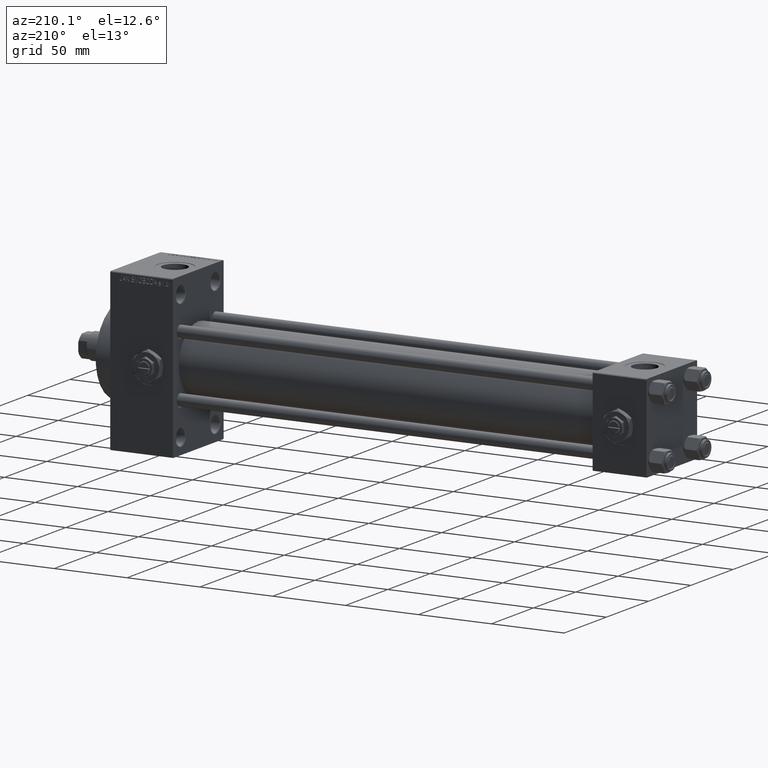
[diagram: clean part render]
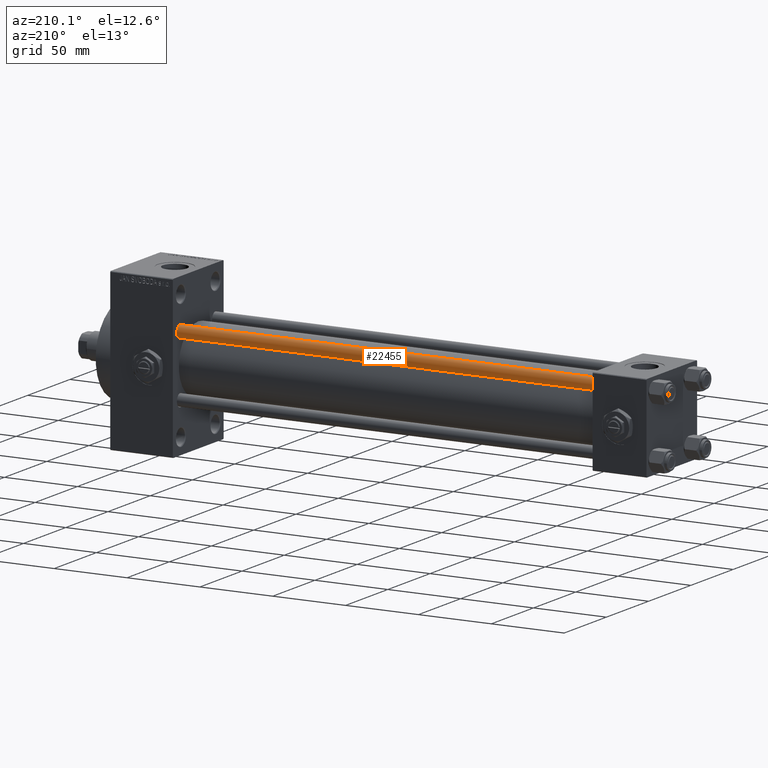
[diagram: same view with one face highlighted and labeled with its STEP entity id]
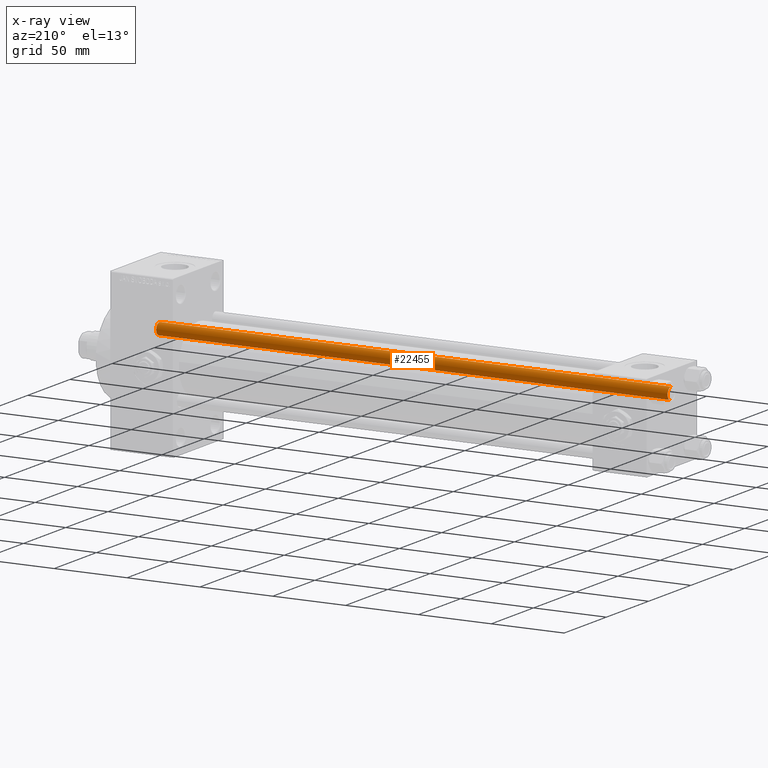
[diagram: x-ray of the same camera — body ghosted, the highlighted face saturated]
A machine part, auxiliary view. The second image highlights one B-rep face of the part: STEP entity #22455.
The next image is the same camera in x-ray: the body ghosted, the highlighted face saturated — about 0% of this face is hidden behind the body in this view.
In plain terms, the highlighted cylindrical surface (edge-blend (fillet) strip) has radius 4 mm, axis along (-1, -0, 0).
Its self-contained STEP definition (entity closure, byte-faithful):
#2598 = VECTOR ( 'NONE', #13902, 1000.000000000000000 ) ;
#2983 = DIRECTION ( 'NONE',  ( -0.000000000000000000, -0.000000000000000000, 1.000000000000000000 ) ) ;
#3470 = CARTESIAN_POINT ( 'NONE',  ( 0.000000000000000000, 0.000000000000000000, 0.5000000000000004441 ) ) ;
#4502 = CIRCLE ( 'NONE', #39553, 4.000000000000000000 ) ;
#4810 = VERTEX_POINT ( 'NONE', #9438 ) ;
#4861 = EDGE_LOOP ( 'NONE', ( #8481, #18904, #38086, #19226 ) ) ;
#6984 = AXIS2_PLACEMENT_3D ( 'NONE', #3470, #2983, #18669 ) ;
#7047 = CARTESIAN_POINT ( 'NONE',  ( 0.000000000000000000, 0.000000000000000000, 352.0000000000000000 ) ) ;
#7480 = AXIS2_PLACEMENT_3D ( 'NONE', #7047, #22246, #44690 ) ;
#8481 = ORIENTED_EDGE ( 'NONE', *, *, #43692, .T. ) ;
#9050 = CARTESIAN_POINT ( 'NONE',  ( -4.000000000000000000, 0.000000000000000000, 0.5000000000000004441 ) ) ;
#9438 = CARTESIAN_POINT ( 'NONE',  ( 4.000000000000000000, 4.898587196589412829E-16, 0.5000000000000004441 ) ) ;
#9679 = CARTESIAN_POINT ( 'NONE',  ( 4.000000000000000000, 4.898587196589412829E-16, 352.0000000000000000 ) ) ;
#9995 = VERTEX_POINT ( 'NONE', #9050 ) ;
#11849 = EDGE_CURVE ( 'NONE', #11954, #9995, #22533, .T. ) ;
#11954 = VERTEX_POINT ( 'NONE', #33778 ) ;
#13902 = DIRECTION ( 'NONE',  ( -0.000000000000000000, -0.000000000000000000, -1.000000000000000000 ) ) ;
#14122 = CIRCLE ( 'NONE', #6984, 4.000000000000000000 ) ;
#15054 = CARTESIAN_POINT ( 'NONE',  ( -4.000000000000000000, 0.000000000000000000, 352.0000000000000000 ) ) ;
#18496 = FACE_OUTER_BOUND ( 'NONE', #4861, .T. ) ;
#18669 = DIRECTION ( 'NONE',  ( 1.000000000000000000, 0.000000000000000000, 0.000000000000000000 ) ) ;
#18904 = ORIENTED_EDGE ( 'NONE', *, *, #20486, .T. ) ;
#19177 = DIRECTION ( 'NONE',  ( 1.000000000000000000, 0.000000000000000000, 0.000000000000000000 ) ) ;
#19226 = ORIENTED_EDGE ( 'NONE', *, *, #11849, .F. ) ;
#20486 = EDGE_CURVE ( 'NONE', #22629, #4810, #39848, .T. ) ;
#22246 = DIRECTION ( 'NONE',  ( -0.000000000000000000, -0.000000000000000000, -1.000000000000000000 ) ) ;
#22455 = ADVANCED_FACE ( 'NONE', ( #18496 ), #41439, .T. ) ;
#22533 = LINE ( 'NONE', #15054, #24742 ) ;
#22629 = VERTEX_POINT ( 'NONE', #23955 ) ;
#22914 = CARTESIAN_POINT ( 'NONE',  ( 0.000000000000000000, 0.000000000000000000, 351.5000000000000000 ) ) ;
#23955 = CARTESIAN_POINT ( 'NONE',  ( 4.000000000000000000, 4.898587196589412829E-16, 351.5000000000000000 ) ) ;
#24742 = VECTOR ( 'NONE', #48722, 1000.000000000000000 ) ;
#31025 = EDGE_CURVE ( 'NONE', #4810, #9995, #14122, .T. ) ;
#33778 = CARTESIAN_POINT ( 'NONE',  ( -4.000000000000000000, 0.000000000000000000, 351.5000000000000000 ) ) ;
#38086 = ORIENTED_EDGE ( 'NONE', *, *, #31025, .T. ) ;
#39553 = AXIS2_PLACEMENT_3D ( 'NONE', #22914, #45610, #19177 ) ;
#39848 = LINE ( 'NONE', #9679, #2598 ) ;
#41439 = CYLINDRICAL_SURFACE ( 'NONE', #7480, 4.000000000000000000 ) ;
#43692 = EDGE_CURVE ( 'NONE', #11954, #22629, #4502, .T. ) ;
#44690 = DIRECTION ( 'NONE',  ( -1.000000000000000000, 0.000000000000000000, 0.000000000000000000 ) ) ;
#45610 = DIRECTION ( 'NONE',  ( 0.000000000000000000, 0.000000000000000000, -1.000000000000000000 ) ) ;
#48722 = DIRECTION ( 'NONE',  ( -0.000000000000000000, -0.000000000000000000, -1.000000000000000000 ) ) ;